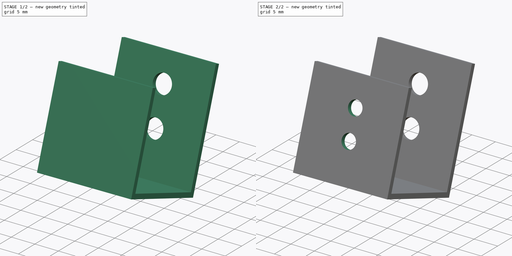
[diagram: build sequence overview — one tinted view per stage of 2, left to right]
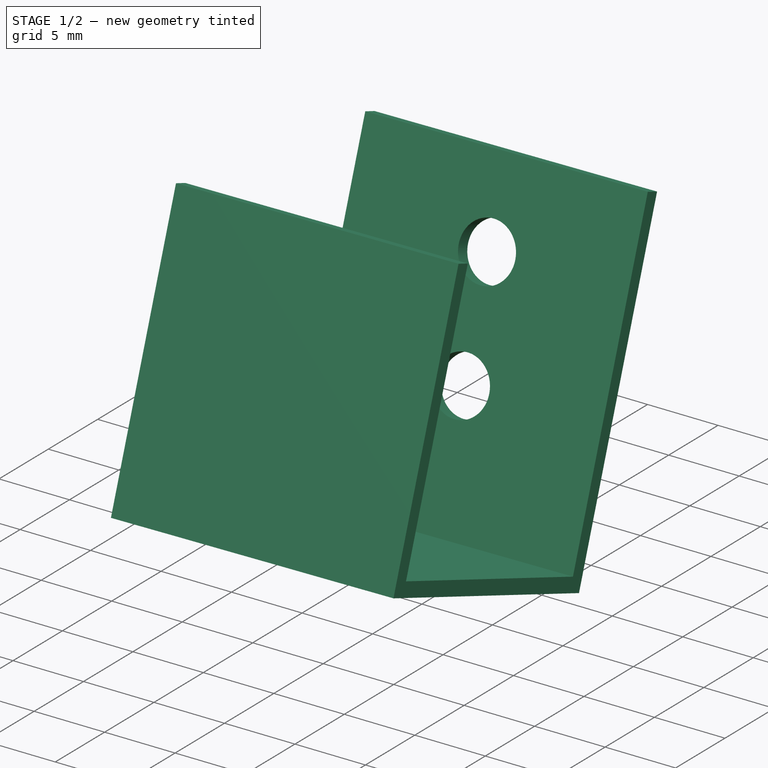
[diagram: stage 1 of 2 — iso view after this stage's code; geometry added in this stage tinted green]
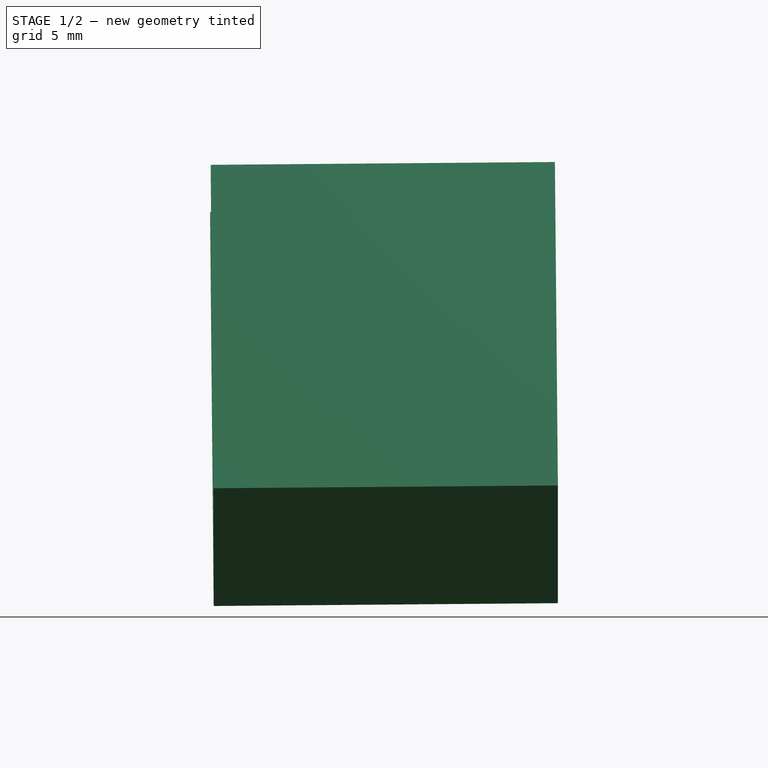
[diagram: stage 1 of 2 — front view after this stage's code; geometry added in this stage tinted green]
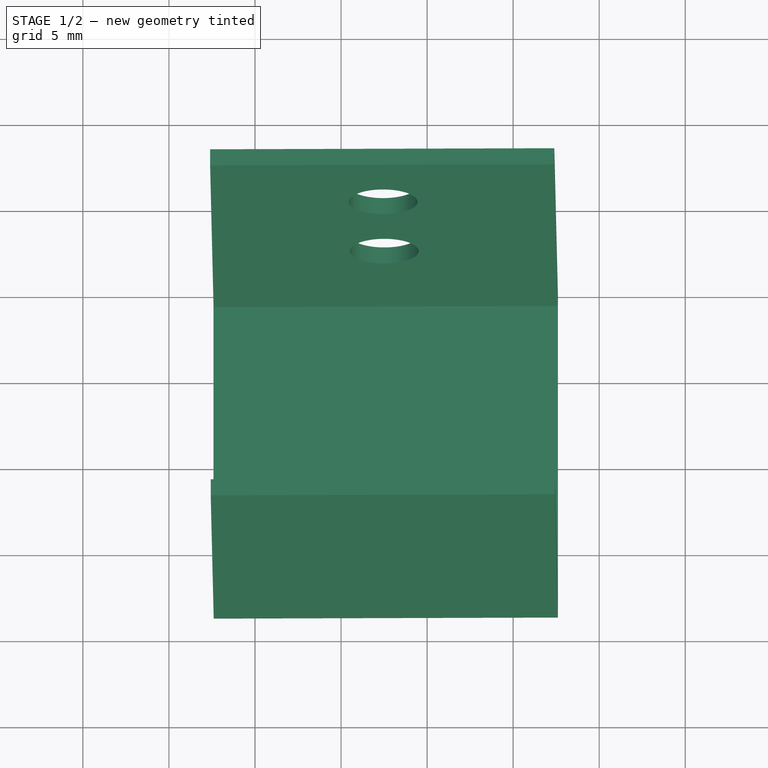
[diagram: stage 1 of 2 — top view after this stage's code; geometry added in this stage tinted green]
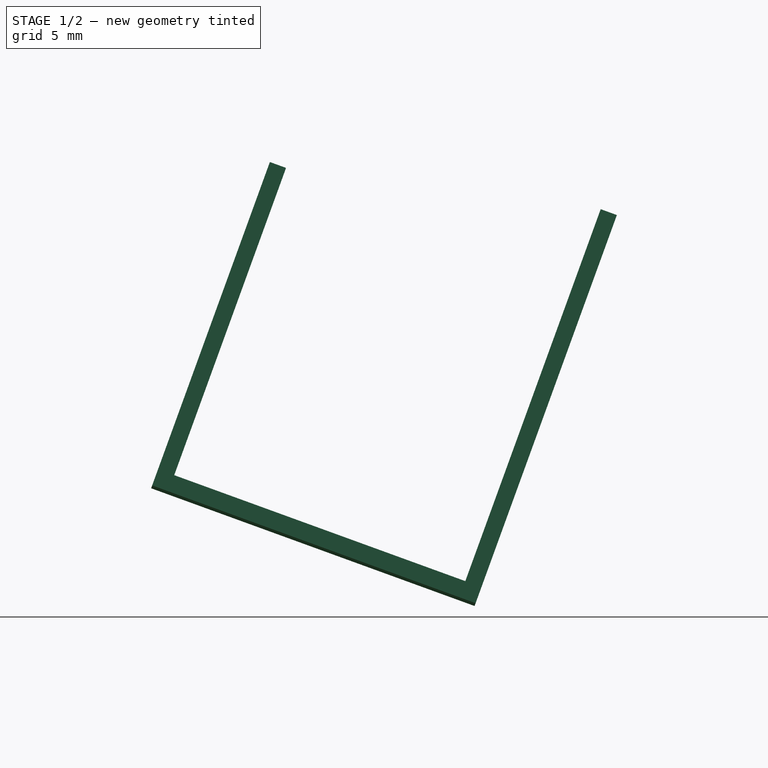
[diagram: stage 1 of 2 — right view after this stage's code; geometry added in this stage tinted green]
FCSTD DOCUMENT  (FreeCAD 0.14R3703 (Git))
Label: p-holder
License: CC-BY 3.0
LicenseURL: http://creativecommons.org/licenses/by/3.0/
objects: Sketcher::SketchObject×3, PartDesign::Pocket×2, PartDesign::Pad×1, Part::Feature×1
note: 10 computed .brp shape members not serialized (recipe doc carries the construction recipe); baked Part::Feature solids carry a one-line shape summary decoded from their .brp

FEATURE [Sketcher::SketchObject] Sketch
  Placement = pos=(77.6008,-223.791,162.07) rot=(0.495203,0.709482,0.501407;1.9017rad)
  sketch-geometry (8):
    g0: LineSegment StartX=0 StartY=0 StartZ=0 EndX=0 EndY=20 EndZ=0
    g1: LineSegment StartX=0 StartY=20 StartZ=0 EndX=1 EndY=20 EndZ=0
    g2: LineSegment StartX=1 StartY=20 StartZ=0 EndX=1 EndY=1 EndZ=0
    g3: LineSegment StartX=1 StartY=1 StartZ=0 EndX=19 EndY=1 EndZ=0
    g4: LineSegment StartX=19 StartY=1 StartZ=0 EndX=19 EndY=24 EndZ=0
    g5: LineSegment StartX=19 StartY=24 StartZ=0 EndX=20 EndY=24 EndZ=0
    g6: LineSegment StartX=20 StartY=24 StartZ=0 EndX=20 EndY=0 EndZ=0
    g7: LineSegment StartX=20 StartY=0 StartZ=0 EndX=0 EndY=0 EndZ=0
  constraints (23):
    c: Coincident(g-1,g0)
    c: Coincident(g0,g1)
    c: Horizontal(g1)
    c: Coincident(g1,g2)
    c: Vertical(g2)
    c: Coincident(g2,g3)
    c: Horizontal(g3)
    c: Coincident(g3,g4)
    c: Vertical(g4)
    c: Coincident(g4,g5)
    c: Horizontal(g5)
    c: Coincident(g5,g6)
    c: Vertical(g6)
    c: Coincident(g6,g7)
    c: Coincident(g7,g0)
    c: Horizontal(g7)
    c: DistanceX(g5) = 1
    c: DistanceY(g3,g6) = -1
    c: DistanceY(g6) = -24
    c: Vertical(g0)
    c: DistanceX(g7) = -20
    c: DistanceX(g1) = 1
    c: DistanceY(g0) = 20
FEATURE [PartDesign::Pad] Pad
  Length = 20
  Length2 = 100
  Placement = pos=(77.6008,-223.791,162.07) rot=(0.495203,0.709482,0.501407;1.9017rad)
  Sketch = -> Sketch
  Type = 0
FEATURE [Sketcher::SketchObject] Sketch001
  Placement = pos=(77.6008,-204.997,155.229) rot=(0.630378,0.635898,0.44526;3.97294rad)
  Support = -> Pad [Face7]
  sketch-geometry (2):
    g0: Circle CenterX=10 CenterY=10 CenterZ=0 NormalX=0 NormalY=0 NormalZ=1 Radius=2
    g1: Circle CenterX=18 CenterY=10 CenterZ=0 NormalX=0 NormalY=0 NormalZ=1 Radius=2
  constraints (6):
    c: DistanceY(g-1,g0) = 10
    c: DistanceX(g-1,g0) = 10
    c: Radius(g1) = 2
    c: Equal(g1,g0)
    c: DistanceX(g0,g1) = 8
    c: DistanceY(g-1,g1) = 10
FEATURE [PartDesign::Pocket] Pocket
  Length = 1
  Placement = pos=(77.6008,-223.791,162.07) rot=(0.495203,0.709482,0.501407;1.9017rad)
  Sketch = -> Sketch001
  Type = 0
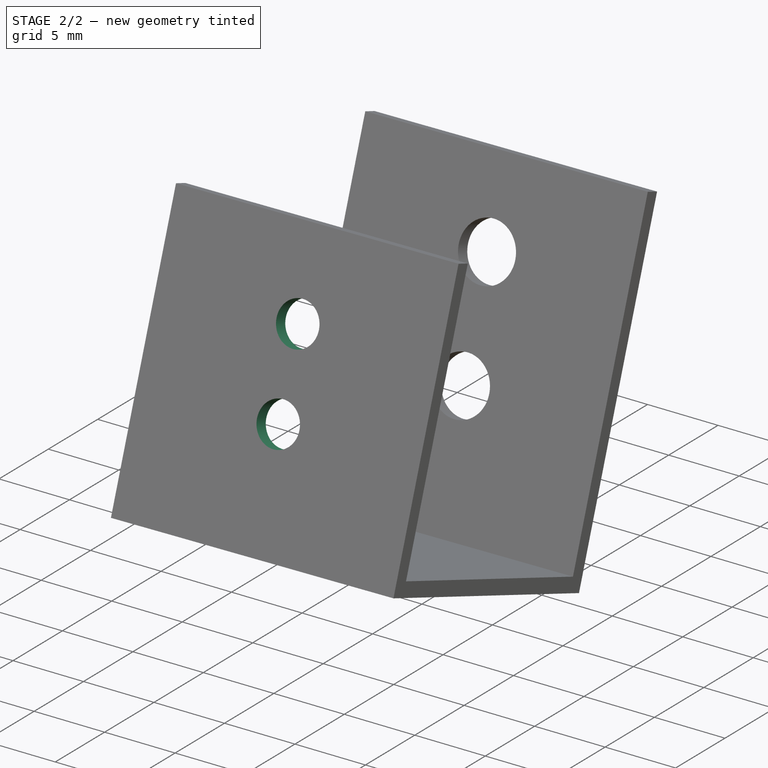
[diagram: stage 2 of 2 — iso view after this stage's code; geometry added in this stage tinted green]
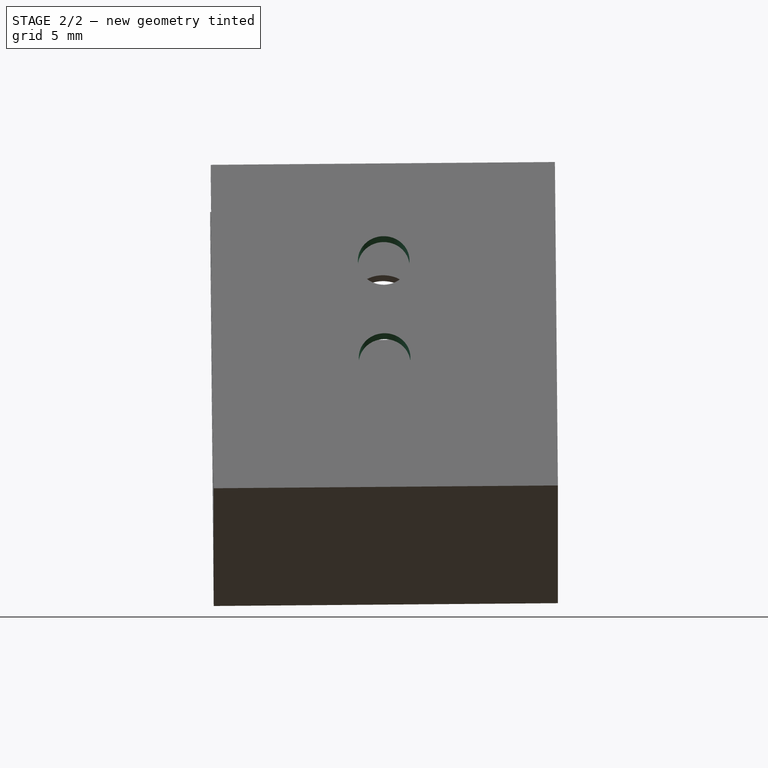
[diagram: stage 2 of 2 — front view after this stage's code; geometry added in this stage tinted green]
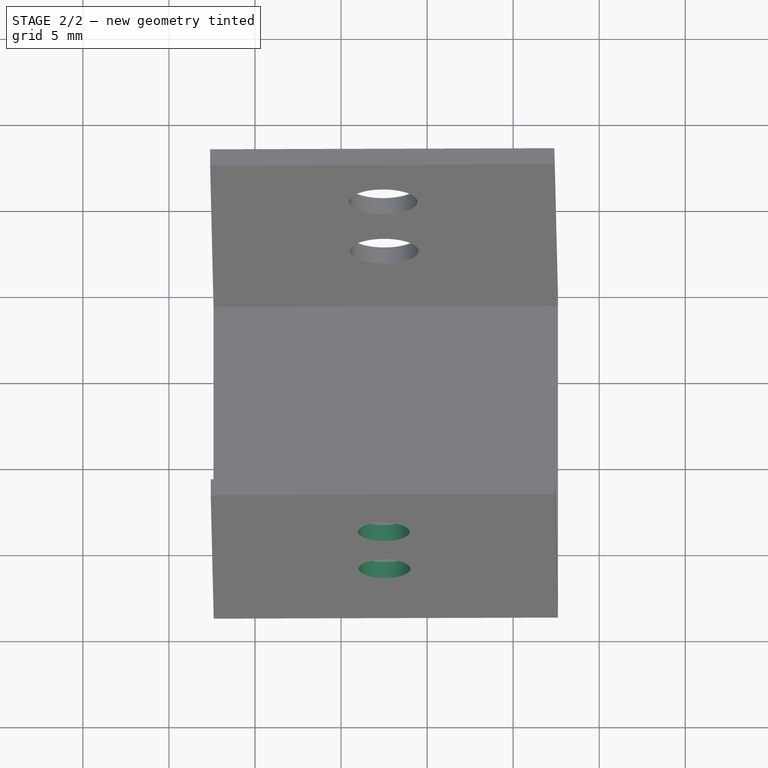
[diagram: stage 2 of 2 — top view after this stage's code; geometry added in this stage tinted green]
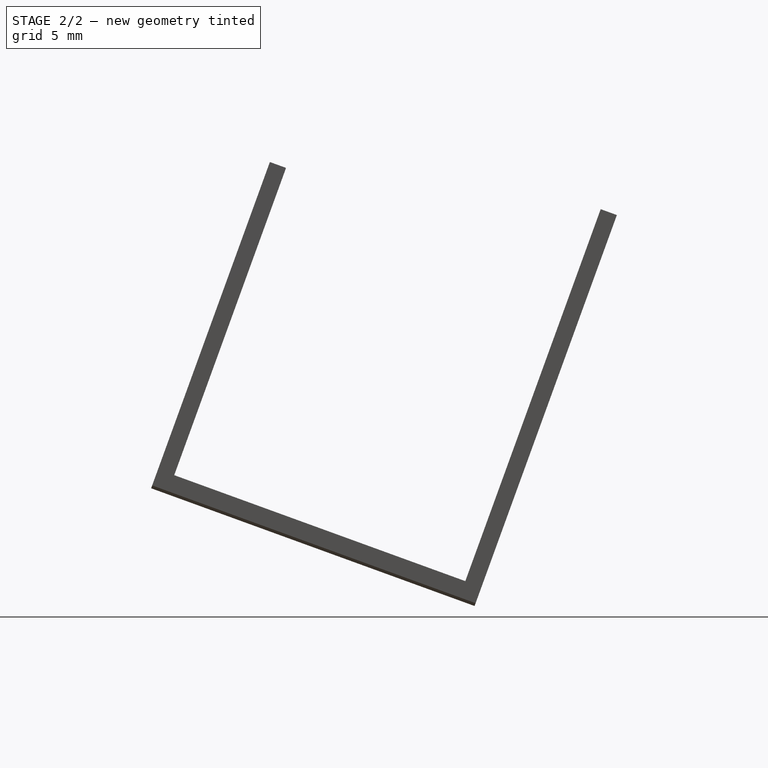
[diagram: stage 2 of 2 — right view after this stage's code; geometry added in this stage tinted green]
FEATURE [Sketcher::SketchObject] Sketch002
  ExternalGeometry = -> [Pocket]
  Placement = pos=(77.6008,-223.791,162.07) rot=(0.50081,0.496463,-0.709023;1.89984rad)
  Support = -> Pocket [Face1]
  sketch-geometry (2):
    g0: Circle CenterX=-14 CenterY=10 CenterZ=0 NormalX=0 NormalY=0 NormalZ=1 Radius=1.5
    g1: Circle CenterX=-8 CenterY=10 CenterZ=0 NormalX=0 NormalY=0 NormalZ=1 Radius=1.5
  constraints (6):
    c: DistanceX(g-3,g1) = 12
    c: DistanceX(g-3,g0) = 6
    c: DistanceY(g0,g-3) = 10
    c: DistanceY(g-3,g1) = -10
    c: Radius(g0) = 1.5
    c: Equal(g0,g1)
FEATURE [PartDesign::Pocket] Pocket001
  Length = 5
  Placement = pos=(77.6008,-223.791,162.07) rot=(0.495203,0.709482,0.501407;1.9017rad)
  Sketch = -> Sketch002
  Type = 0
FEATURE [Part::Feature] Pocket002  label="P Connector"
  Placement = pos=(77.6008,-223.791,162.07) rot=(0.495203,0.709482,0.501407;1.9017rad)
  shape: bbox 20.21 x 27.06 x 25.8 mm, 14 faces (baked)
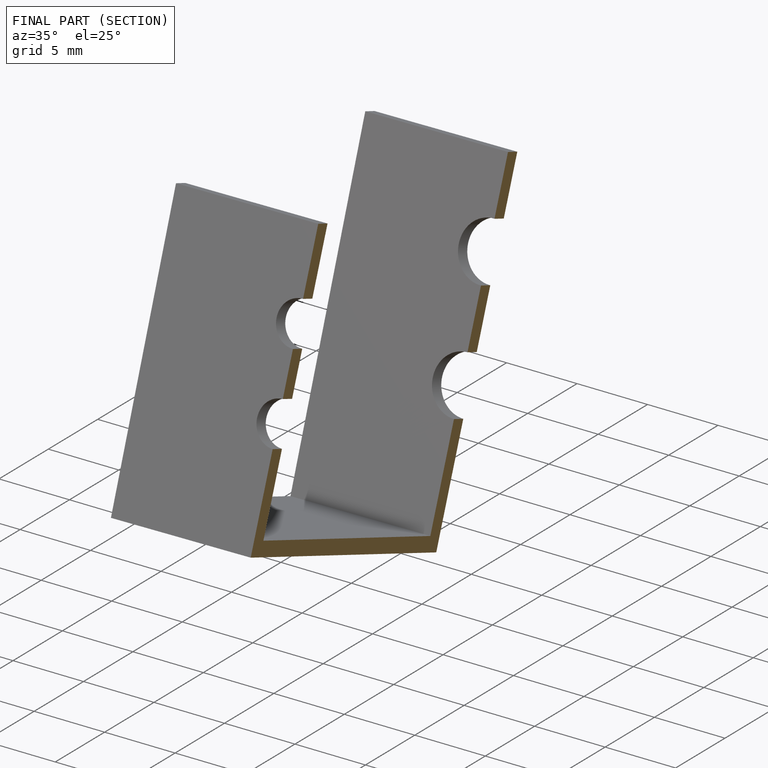
[diagram: finished part — half-section view (interior)]
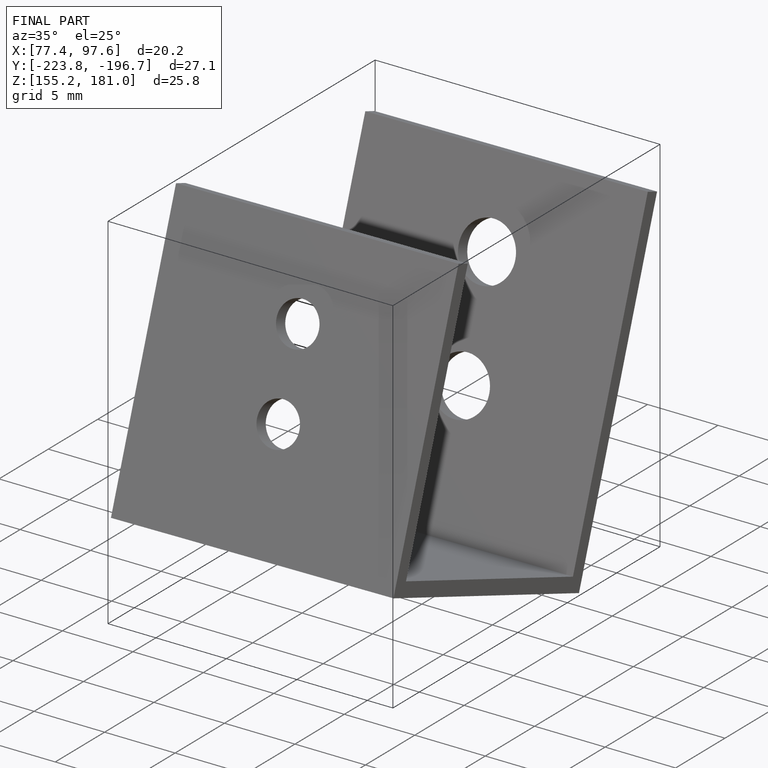
[diagram: finished part — iso view with bounding-box wireframe]
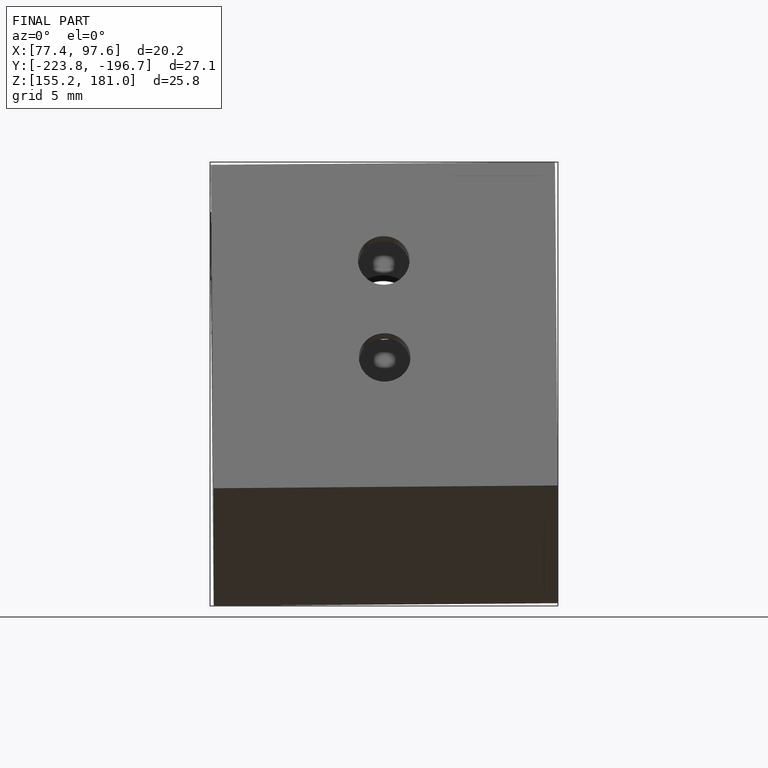
[diagram: finished part — front view with bounding-box wireframe]
